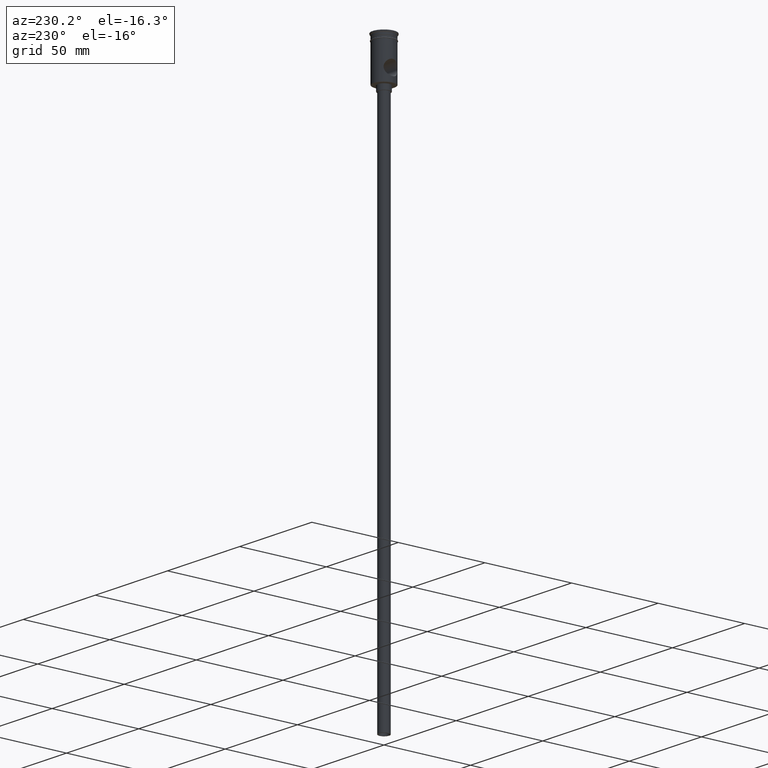
[diagram: clean part render]
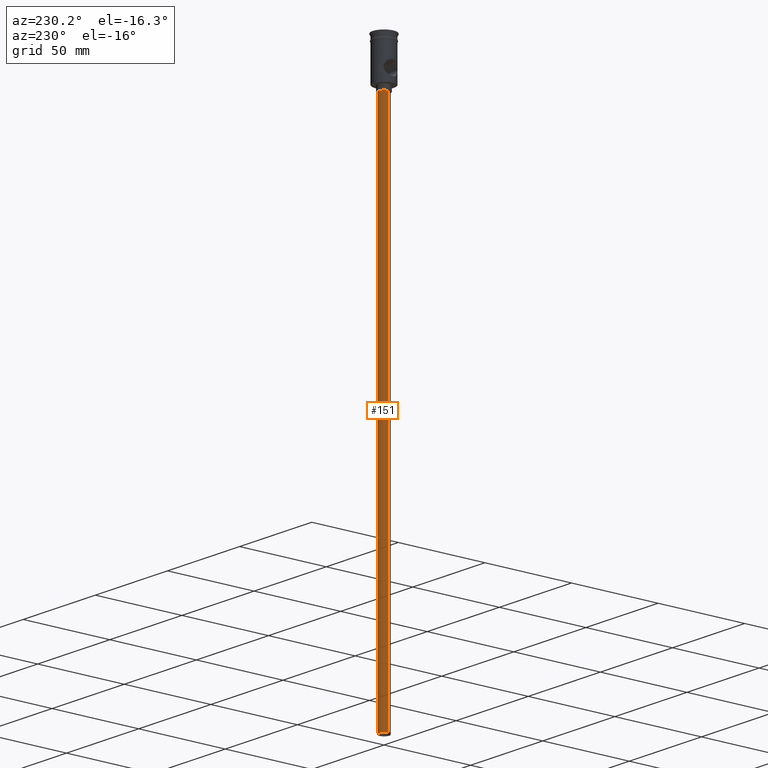
[diagram: same view with one face highlighted and labeled with its STEP entity id]
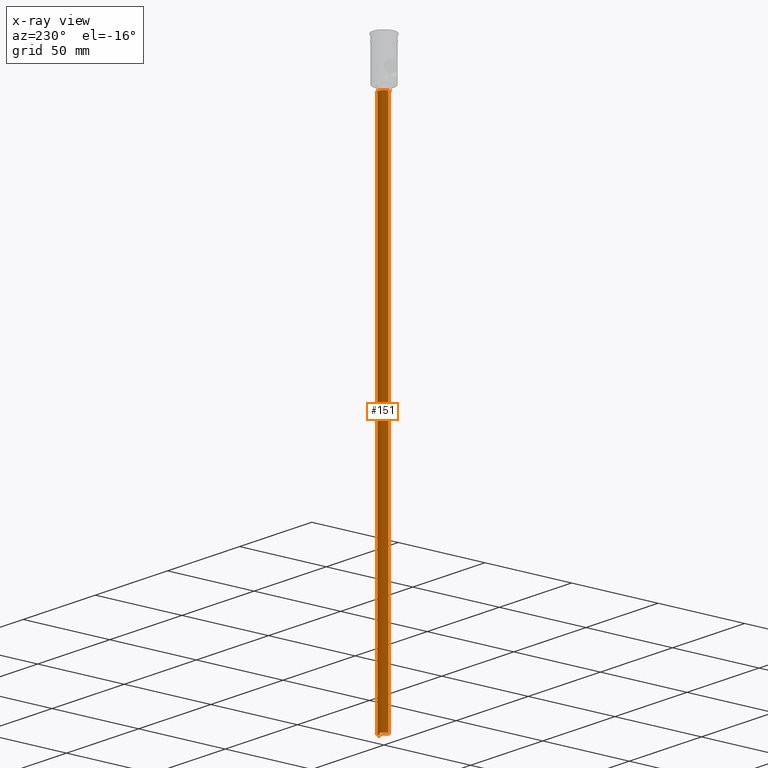
[diagram: x-ray of the same camera — body ghosted, the highlighted face saturated]
A machine part, auxiliary view. The second image highlights one B-rep face of the part: STEP entity #151.
The next image is the same camera in x-ray: the body ghosted, the highlighted face saturated — about 0% of this face is hidden behind the body in this view.
In plain terms, the highlighted cylindrical surface (edge-blend (fillet) strip) has radius 3 mm, axis along (-0, -0, 1).
Its self-contained STEP definition (entity closure, byte-faithful):
#49 = VECTOR ( 'NONE', #892, 1000.000000000000000 ) ;
#94 = CARTESIAN_POINT ( 'NONE',  ( 3.000000000000000444, 0.000000000000000000, -324.0000000000000000 ) ) ;
#150 = ORIENTED_EDGE ( 'NONE', *, *, #218, .T. ) ;
#151 = ADVANCED_FACE ( 'NONE', ( #717 ), #1054, .T. ) ;
#169 = DIRECTION ( 'NONE',  ( 0.000000000000000000, 0.000000000000000000, -1.000000000000000000 ) ) ;
#173 = CARTESIAN_POINT ( 'NONE',  ( 3.000000000000000444, 0.000000000000000000, -324.0000000000000000 ) ) ;
#211 = CARTESIAN_POINT ( 'NONE',  ( 0.000000000000000000, 0.000000000000000000, -324.0000000000000000 ) ) ;
#218 = EDGE_CURVE ( 'NONE', #876, #1077, #1095, .T. ) ;
#263 = EDGE_LOOP ( 'NONE', ( #654, #150, #475, #321 ) ) ;
#279 = AXIS2_PLACEMENT_3D ( 'NONE', #211, #681, #300 ) ;
#300 = DIRECTION ( 'NONE',  ( -1.000000000000000000, 0.000000000000000000, 0.000000000000000000 ) ) ;
#321 = ORIENTED_EDGE ( 'NONE', *, *, #625, .F. ) ;
#337 = LINE ( 'NONE', #94, #49 ) ;
#357 = CIRCLE ( 'NONE', #482, 3.000000000000000444 ) ;
#394 = EDGE_CURVE ( 'NONE', #876, #1278, #911, .T. ) ;
#474 = CARTESIAN_POINT ( 'NONE',  ( 0.000000000000000000, 0.000000000000000000, -324.0000000000000000 ) ) ;
#475 = ORIENTED_EDGE ( 'NONE', *, *, #1304, .T. ) ;
#482 = AXIS2_PLACEMENT_3D ( 'NONE', #626, #169, #858 ) ;
#625 = EDGE_CURVE ( 'NONE', #1278, #1255, #337, .T. ) ;
#626 = CARTESIAN_POINT ( 'NONE',  ( 0.000000000000000000, 0.000000000000000000, -27.00000000000000000 ) ) ;
#654 = ORIENTED_EDGE ( 'NONE', *, *, #394, .F. ) ;
#681 = DIRECTION ( 'NONE',  ( 0.000000000000000000, 0.000000000000000000, -1.000000000000000000 ) ) ;
#708 = CARTESIAN_POINT ( 'NONE',  ( -3.000000000000000444, 3.673940397442060361E-16, -324.0000000000000000 ) ) ;
#717 = FACE_OUTER_BOUND ( 'NONE', #263, .T. ) ;
#858 = DIRECTION ( 'NONE',  ( -1.000000000000000000, 0.000000000000000000, 0.000000000000000000 ) ) ;
#876 = VERTEX_POINT ( 'NONE', #708 ) ;
#892 = DIRECTION ( 'NONE',  ( -0.000000000000000000, -0.000000000000000000, 1.000000000000000000 ) ) ;
#911 = CIRCLE ( 'NONE', #279, 3.000000000000000444 ) ;
#991 = CARTESIAN_POINT ( 'NONE',  ( -3.000000000000000444, 3.673940397442060361E-16, -324.0000000000000000 ) ) ;
#1016 = CARTESIAN_POINT ( 'NONE',  ( -3.000000000000000444, 3.673940397442060361E-16, -27.00000000000000000 ) ) ;
#1054 = CYLINDRICAL_SURFACE ( 'NONE', #1312, 3.000000000000000444 ) ;
#1077 = VERTEX_POINT ( 'NONE', #1016 ) ;
#1095 = LINE ( 'NONE', #991, #1153 ) ;
#1153 = VECTOR ( 'NONE', #1305, 1000.000000000000000 ) ;
#1255 = VERTEX_POINT ( 'NONE', #1319 ) ;
#1278 = VERTEX_POINT ( 'NONE', #173 ) ;
#1304 = EDGE_CURVE ( 'NONE', #1077, #1255, #357, .T. ) ;
#1305 = DIRECTION ( 'NONE',  ( -0.000000000000000000, -0.000000000000000000, 1.000000000000000000 ) ) ;
#1312 = AXIS2_PLACEMENT_3D ( 'NONE', #474, #1373, #1389 ) ;
#1319 = CARTESIAN_POINT ( 'NONE',  ( 3.000000000000000444, 0.000000000000000000, -27.00000000000000000 ) ) ;
#1373 = DIRECTION ( 'NONE',  ( -0.000000000000000000, -0.000000000000000000, 1.000000000000000000 ) ) ;
#1389 = DIRECTION ( 'NONE',  ( 1.000000000000000000, 0.000000000000000000, 0.000000000000000000 ) ) ;